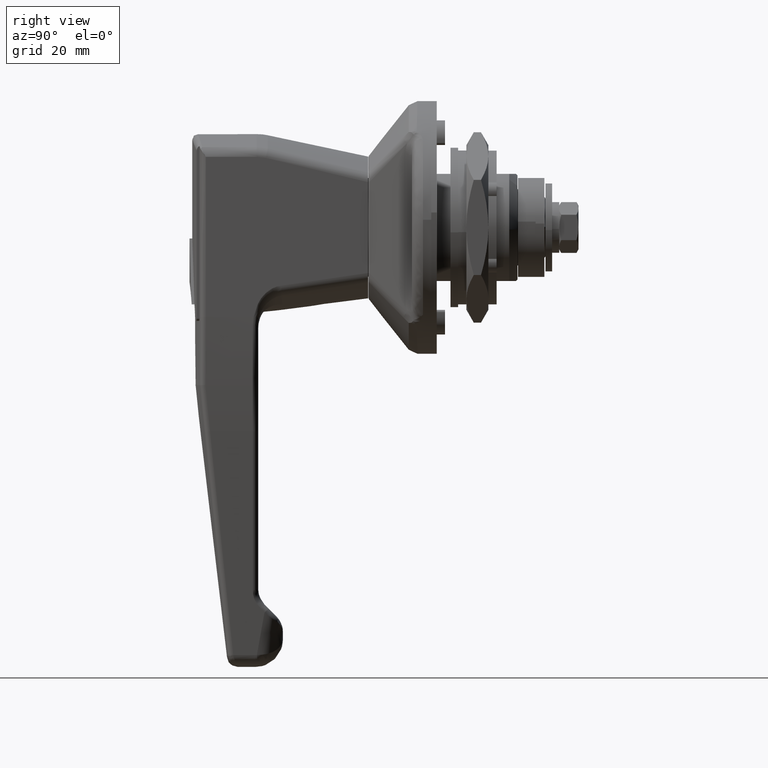
[diagram: clean part render]
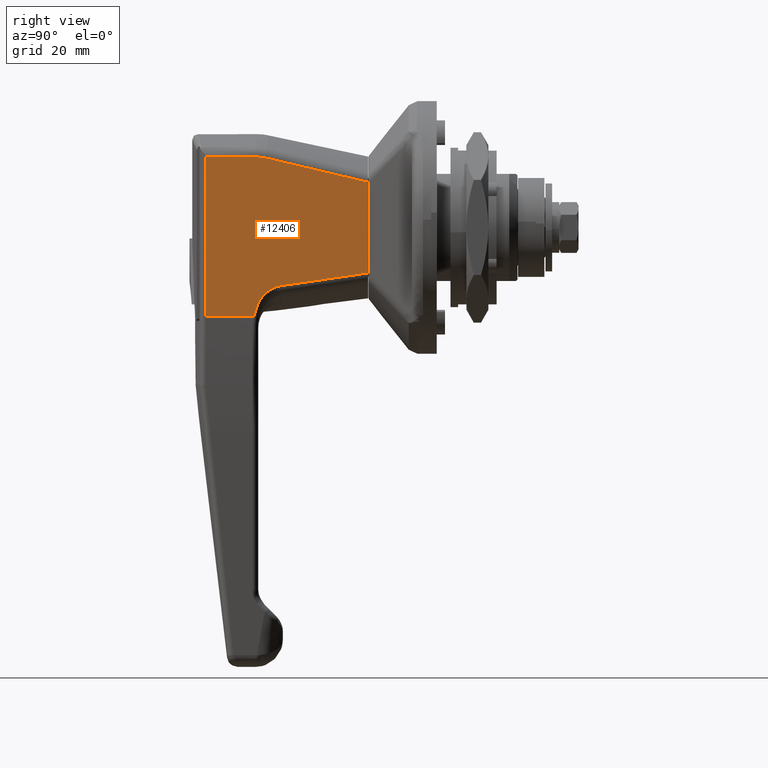
[diagram: same view with one face highlighted and labeled with its STEP entity id]
A machine part, right view. The second image highlights one B-rep face of the part: STEP entity #12406.
In plain terms, the highlighted face is a freeform B-spline surface patch.
Its self-contained STEP definition (entity closure, byte-faithful):
#5386=CARTESIAN_POINT('',(-33.330451468540403,-11.500000000000000,-16.269321783101098));
#5387=VERTEX_POINT('',#5386);
#5421=CARTESIAN_POINT('',(-28.381807645060050,-11.500000000000000,-10.600484931019439));
#5422=VERTEX_POINT('',#5421);
#5432=CARTESIAN_POINT('',(-33.330451468540403,-11.500000000000000,-16.269321783101098));
#5433=CARTESIAN_POINT('',(-32.832940724916050,-11.500000000000000,-14.022785314781119));
#5434=CARTESIAN_POINT('',(-31.836850242357048,-11.500000000000000,-12.711760955702459));
#5435=CARTESIAN_POINT('',(-31.207342128242939,-11.500000000000000,-11.883221293603230));
#5436=CARTESIAN_POINT('',(-30.348831780427911,-11.500000000000000,-11.338671654807680));
#5437=CARTESIAN_POINT('',(-29.421988809422039,-11.500000000000000,-10.750778909698820));
#5438=CARTESIAN_POINT('',(-28.381807645060039,-11.500000000000000,-10.600484931019460));
#5439=B_SPLINE_CURVE_WITH_KNOTS('',2,(#5432,#5433,#5434,#5435,#5436,#5437,#5438),.UNSPECIFIED.,.F.,.U.,(3,2,2,3),(0.0,0.500000000000000,0.750000000000000,1.0),.UNSPECIFIED.);
#5440=EDGE_CURVE('',#5387,#5422,#5439,.T.);
#5483=CARTESIAN_POINT('',(-12.500000000000000,-11.500000000000000,-8.269973172099750));
#5484=VERTEX_POINT('',#5483);
#5507=CARTESIAN_POINT('',(-28.381807645060050,-11.500000000000000,-10.600484931019439));
#5508=CARTESIAN_POINT('',(-23.086022527098368,-11.500000000000000,-9.836297673090847));
#5509=CARTESIAN_POINT('',(-17.791787536476281,-11.500000000000000,-9.061377350288035));
#5510=CARTESIAN_POINT('',(-12.500000000000000,-11.500000000000000,-8.269973172099761));
#5511=QUASI_UNIFORM_CURVE('',3,(#5507,#5508,#5509,#5510),.UNSPECIFIED.,.F.,.U.);
#5512=EDGE_CURVE('',#5422,#5484,#5511,.T.);
#8526=CARTESIAN_POINT('',(-42.048487794596902,-11.500000000000000,-16.269321783101098));
#8527=VERTEX_POINT('',#8526);
#8731=CARTESIAN_POINT('',(-42.048487794596902,-11.500000000000000,12.843134832984420));
#8732=VERTEX_POINT('',#8731);
#8763=CARTESIAN_POINT('',(-42.048487794596902,-11.500000000000000,12.843134832984420));
#8764=CARTESIAN_POINT('',(-42.048487794596902,-11.500000000000000,-16.269321783101098));
#8765=QUASI_UNIFORM_CURVE('',1,(#8763,#8764),.UNSPECIFIED.,.F.,.U.);
#8766=EDGE_CURVE('',#8732,#8527,#8765,.T.);
#9358=CARTESIAN_POINT('',(-12.500000000000000,-11.500000000000000,8.238492369831890));
#9359=VERTEX_POINT('',#9358);
#9391=CARTESIAN_POINT('',(-31.136026393363100,-11.500000000000000,12.657212273482360));
#9392=VERTEX_POINT('',#9391);
#9406=CARTESIAN_POINT('',(-12.500000000000000,-11.500000000000000,8.238492369831890));
#9407=CARTESIAN_POINT('',(-15.600480554537601,-11.500000000000000,8.998242594686667));
#9408=CARTESIAN_POINT('',(-18.704463842131510,-11.499999999999989,9.743219983265403));
#9409=CARTESIAN_POINT('',(-24.917075605785602,-11.499999999999989,11.213583599012519));
#9410=CARTESIAN_POINT('',(-28.025726286090219,-11.500000000000000,11.938876179402101));
#9411=CARTESIAN_POINT('',(-31.136026393363100,-11.500000000000000,12.657212273482379));
#9412=B_SPLINE_CURVE_WITH_KNOTS('',3,(#9406,#9407,#9408,#9409,#9410,#9411),.UNSPECIFIED.,.F.,.U.,(4,2,4),(0.0,0.500000000000000,1.0),.UNSPECIFIED.);
#9413=EDGE_CURVE('',#9359,#9392,#9412,.T.);
#9468=CARTESIAN_POINT('',(-32.764732462137900,-11.500000000000000,12.843134832984420));
#9469=VERTEX_POINT('',#9468);
#9483=CARTESIAN_POINT('',(-31.136026393363100,-11.500000000000000,12.657212273482360));
#9484=CARTESIAN_POINT('',(-31.403951066454940,-11.500000000000000,12.719090554548670));
#9485=CARTESIAN_POINT('',(-31.673648477250090,-11.499999999999989,12.765439420231161));
#9486=CARTESIAN_POINT('',(-32.216545088261988,-11.499999999999989,12.827461015801680));
#9487=CARTESIAN_POINT('',(-32.489744164360189,-11.500000000000000,12.843134832984420));
#9488=CARTESIAN_POINT('',(-32.764732462137900,-11.500000000000000,12.843134832984420));
#9489=B_SPLINE_CURVE_WITH_KNOTS('',3,(#9483,#9484,#9485,#9486,#9487,#9488),.UNSPECIFIED.,.F.,.U.,(4,2,4),(0.0,0.500000000000000,1.0),.UNSPECIFIED.);
#9490=EDGE_CURVE('',#9392,#9469,#9489,.T.);
#9526=CARTESIAN_POINT('',(-32.764732462137900,-11.500000000000000,12.843134832984420));
#9527=CARTESIAN_POINT('',(-42.048487794596902,-11.500000000000000,12.843134832984420));
#9528=QUASI_UNIFORM_CURVE('',1,(#9526,#9527),.UNSPECIFIED.,.F.,.U.);
#9529=EDGE_CURVE('',#9469,#8732,#9528,.T.);
#12244=CARTESIAN_POINT('',(-12.500000000000000,-11.500000000000000,-8.269973172099750));
#12245=CARTESIAN_POINT('',(-12.500000000000000,-11.500000000000000,8.238492369831890));
#12246=QUASI_UNIFORM_CURVE('',1,(#12244,#12245),.UNSPECIFIED.,.F.,.U.);
#12247=EDGE_CURVE('',#5484,#9359,#12246,.T.);
#12387=CARTESIAN_POINT('',(-43.524435534806493,-11.500000000000000,14.297302257819220));
#12388=CARTESIAN_POINT('',(-43.524435534806493,-11.500000000000000,-17.723489728507190));
#12389=CARTESIAN_POINT('',(-11.024052259790411,-11.500000000000000,14.297302257819220));
#12390=CARTESIAN_POINT('',(-11.024052259790411,-11.500000000000000,-17.723489728507190));
#12391=B_SPLINE_SURFACE_WITH_KNOTS('',1,1,((#12387,#12389),(#12388,#12390)),.UNSPECIFIED.,.F.,.F.,.U.,(2,2),(2,2),(0.0,32.020791986326401),(0.0,32.500383275016091),.UNSPECIFIED.);
#12392=CARTESIAN_POINT('',(-33.330451468540403,-11.500000000000000,-16.269321783101098));
#12393=CARTESIAN_POINT('',(-42.048487794596902,-11.500000000000000,-16.269321783101098));
#12394=QUASI_UNIFORM_CURVE('',1,(#12392,#12393),.UNSPECIFIED.,.F.,.U.);
#12395=EDGE_CURVE('',#5387,#8527,#12394,.T.);
#12396=ORIENTED_EDGE('',*,*,#12395,.F.);
#12397=ORIENTED_EDGE('',*,*,#5440,.T.);
#12398=ORIENTED_EDGE('',*,*,#5512,.T.);
#12399=ORIENTED_EDGE('',*,*,#12247,.T.);
#12400=ORIENTED_EDGE('',*,*,#9413,.T.);
#12401=ORIENTED_EDGE('',*,*,#9490,.T.);
#12402=ORIENTED_EDGE('',*,*,#9529,.T.);
#12403=ORIENTED_EDGE('',*,*,#8766,.T.);
#12404=EDGE_LOOP('',(#12396,#12397,#12398,#12399,#12400,#12401,#12402,#12403));
#12405=FACE_OUTER_BOUND('',#12404,.T.);
#12406=ADVANCED_FACE('',(#12405),#12391,.T.);